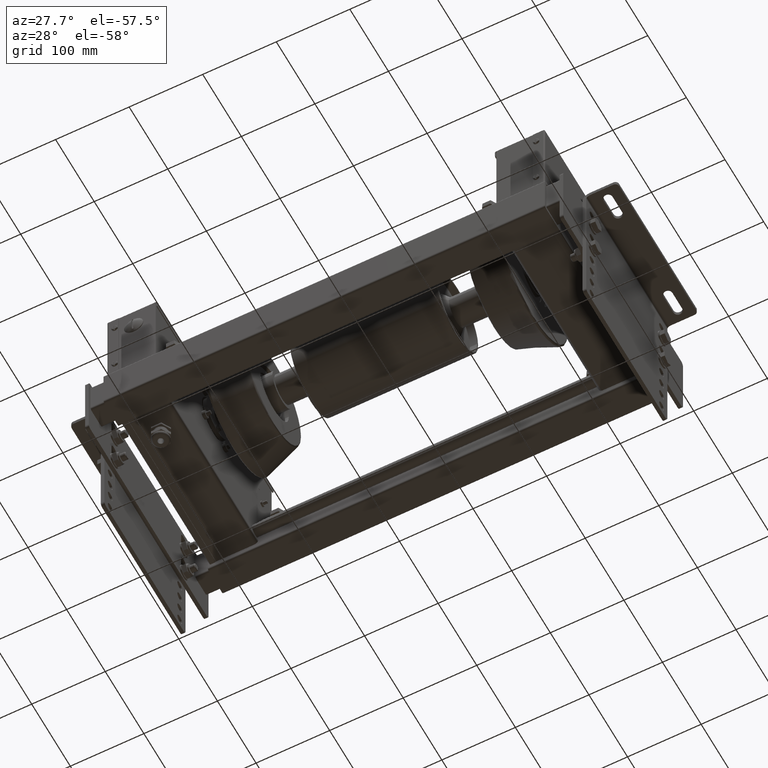
[diagram: clean part render]
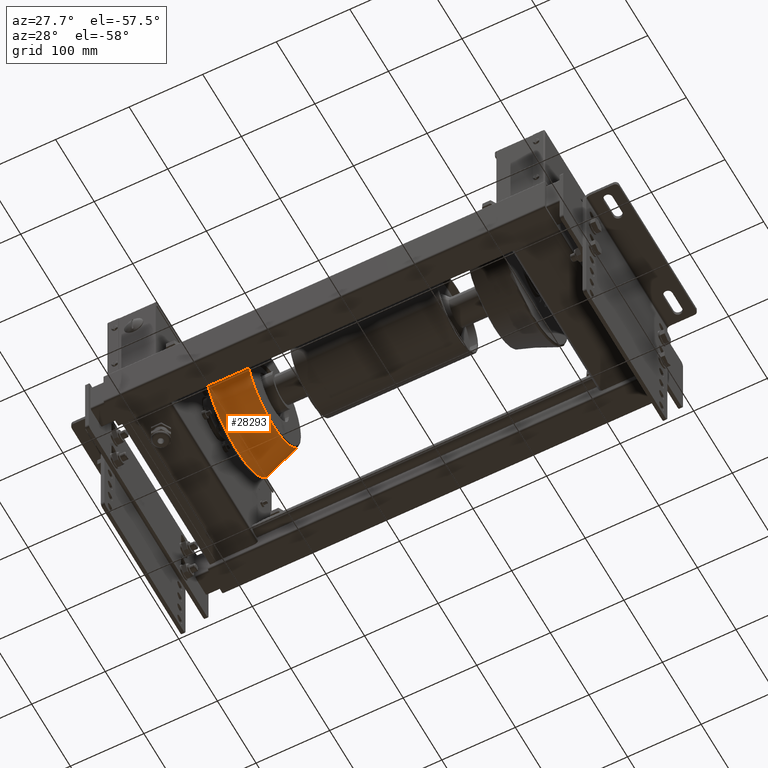
[diagram: same view with one face highlighted and labeled with its STEP entity id]
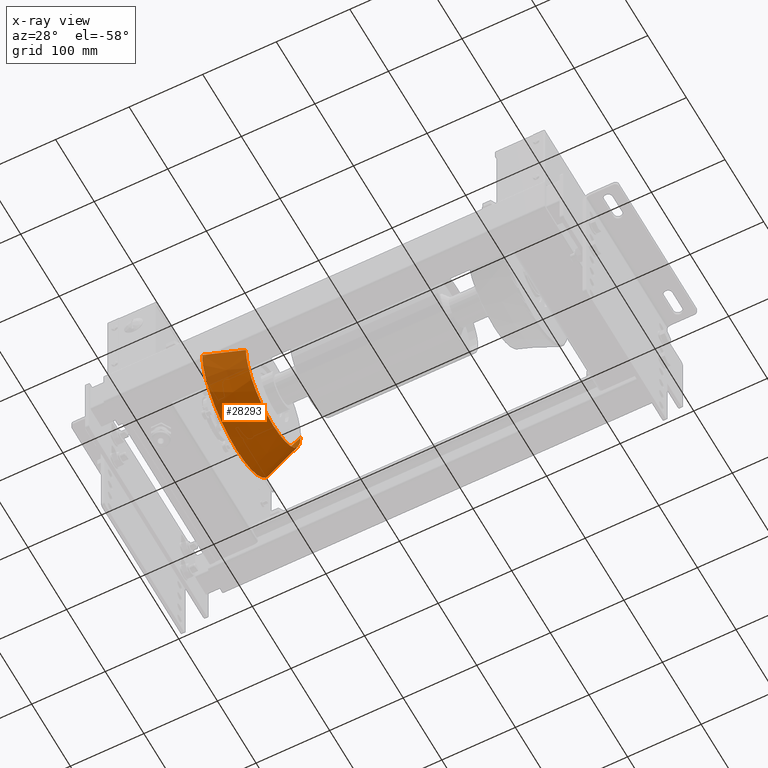
[diagram: x-ray of the same camera — body ghosted, the highlighted face saturated]
A machine part, auxiliary view. The second image highlights one B-rep face of the part: STEP entity #28293.
The next image is the same camera in x-ray: the body ghosted, the highlighted face saturated — about 19% of this face is hidden behind the body in this view.
In plain terms, the highlighted conical surface has half-angle 20 deg.
Its self-contained STEP definition (entity closure, byte-faithful):
#27858=CARTESIAN_POINT('',(24.144949641685770,-1.087235E-014,88.779459620092780));
#27859=VERTEX_POINT('',#27858);
#27867=CARTESIAN_POINT('',(24.144949641685777,-88.779459620092751,-1.087235E-014));
#27868=VERTEX_POINT('',#27867);
#27869=CARTESIAN_POINT('',(24.144949641685770,0.0,0.0));
#27870=DIRECTION('',(1.0,0.0,0.0));
#27871=DIRECTION('',(0.0,1.0,0.0));
#27872=AXIS2_PLACEMENT_3D('',#27869,#27870,#27871);
#27873=CIRCLE('',#27872,88.779459620092780);
#27874=EDGE_CURVE('',#27859,#27868,#27873,.T.);
#27891=CARTESIAN_POINT('',(24.144949641685770,88.779459620092780,0.0));
#27892=VERTEX_POINT('',#27891);
#27893=CARTESIAN_POINT('',(-25.855050358314116,70.580947906782797,0.0));
#27894=VERTEX_POINT('',#27893);
#27895=CARTESIAN_POINT('',(24.144949641685770,88.779459620092780,0.0));
#27896=DIRECTION('',(-0.939692620785909,-0.342020143325667,0.0));
#27897=VECTOR('',#27896,53.208888623795453);
#27898=LINE('',#27895,#27897);
#27899=EDGE_CURVE('',#27892,#27894,#27898,.T.);
#27909=CARTESIAN_POINT('',(-25.855050358314102,-70.580947906782768,-8.643673E-015));
#27910=VERTEX_POINT('',#27909);
#27911=CARTESIAN_POINT('',(24.144949641685777,-88.779459620092751,-1.087235E-014));
#27912=DIRECTION('',(-0.939692620785909,0.342020143325667,4.188539E-017));
#27913=VECTOR('',#27912,53.208888623795445);
#27914=LINE('',#27911,#27913);
#27915=EDGE_CURVE('',#27868,#27910,#27914,.T.);
#27951=CARTESIAN_POINT('',(-25.855050358314116,-8.643673E-015,70.580947906782797));
#27952=VERTEX_POINT('',#27951);
#27953=CARTESIAN_POINT('',(-25.855050358314116,0.0,0.0));
#27954=DIRECTION('',(1.0,0.0,0.0));
#27955=DIRECTION('',(0.0,1.0,0.0));
#27956=AXIS2_PLACEMENT_3D('',#27953,#27954,#27955);
#27957=CIRCLE('',#27956,70.580947906782797);
#27958=EDGE_CURVE('',#27952,#27910,#27957,.T.);
#28263=CARTESIAN_POINT('',(-25.855050358314116,0.0,0.0));
#28264=DIRECTION('',(1.0,0.0,0.0));
#28265=DIRECTION('',(0.0,1.0,0.0));
#28266=AXIS2_PLACEMENT_3D('',#28263,#28264,#28265);
#28267=CIRCLE('',#28266,70.580947906782797);
#28268=EDGE_CURVE('',#27894,#27952,#28267,.T.);
#28274=CARTESIAN_POINT('',(-0.855050358314173,0.0,0.0));
#28275=DIRECTION('',(1.0,0.0,0.0));
#28276=DIRECTION('',(0.0,1.0,0.0));
#28277=AXIS2_PLACEMENT_3D('',#28274,#28275,#28276);
#28278=CONICAL_SURFACE('',#28277,79.680203763437760,19.999999999999908);
#28279=ORIENTED_EDGE('',*,*,#27899,.T.);
#28280=ORIENTED_EDGE('',*,*,#28268,.T.);
#28281=ORIENTED_EDGE('',*,*,#27958,.T.);
#28282=ORIENTED_EDGE('',*,*,#27915,.F.);
#28283=ORIENTED_EDGE('',*,*,#27874,.F.);
#28284=CARTESIAN_POINT('',(24.144949641685770,0.0,0.0));
#28285=DIRECTION('',(1.0,0.0,0.0));
#28286=DIRECTION('',(0.0,1.0,0.0));
#28287=AXIS2_PLACEMENT_3D('',#28284,#28285,#28286);
#28288=CIRCLE('',#28287,88.779459620092780);
#28289=EDGE_CURVE('',#27892,#27859,#28288,.T.);
#28290=ORIENTED_EDGE('',*,*,#28289,.F.);
#28291=EDGE_LOOP('',(#28279,#28280,#28281,#28282,#28283,#28290));
#28292=FACE_OUTER_BOUND('',#28291,.T.);
#28293=ADVANCED_FACE('',(#28292),#28278,.T.);